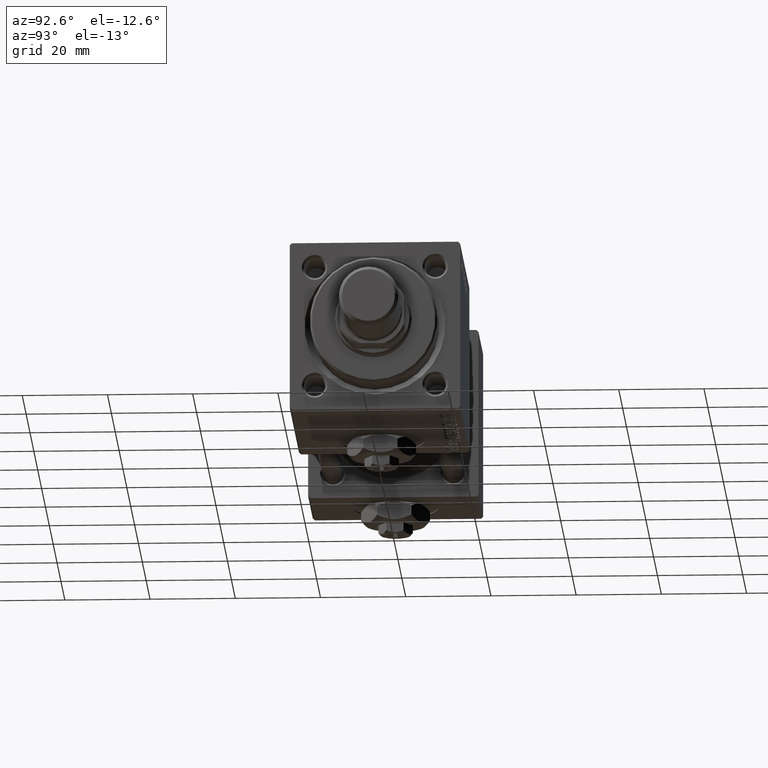
[diagram: clean part render]
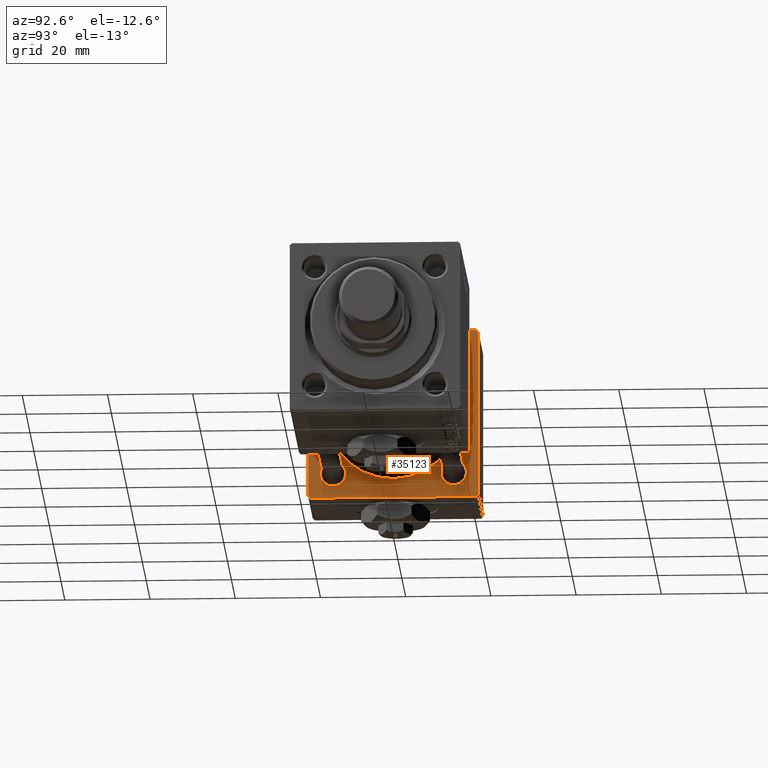
[diagram: same view with one face highlighted and labeled with its STEP entity id]
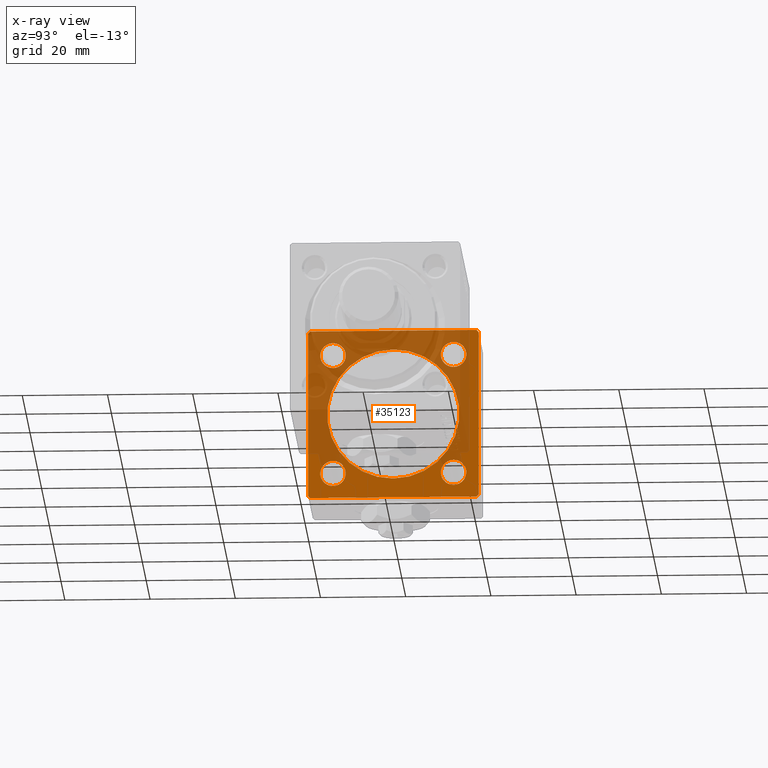
[diagram: x-ray of the same camera — body ghosted, the highlighted face saturated]
A machine part, auxiliary view. The second image highlights one B-rep face of the part: STEP entity #35123.
The next image is the same camera in x-ray: the body ghosted, the highlighted face saturated — about 59% of this face is hidden behind the body in this view.
In plain terms, the highlighted planar face has unit normal (-1, 0, 0).
Its self-contained STEP definition (entity closure, byte-faithful):
#519 = EDGE_LOOP ( 'NONE', ( #50277, #7195 ) ) ;
#689 = CARTESIAN_POINT ( 'NONE',  ( 24.00000000000000000, 14.14999999999999858, 14.15000000000000036 ) ) ;
#772 = DIRECTION ( 'NONE',  ( 1.000000000000000000, 0.000000000000000000, 0.000000000000000000 ) ) ;
#1364 = CARTESIAN_POINT ( 'NONE',  ( 24.00000000000000000, -19.49999999999999289, 19.99999999999998934 ) ) ;
#1445 = CIRCLE ( 'NONE', #26029, 15.50000000000000000 ) ;
#1548 = PLANE ( 'NONE',  #42310 ) ;
#1754 = CIRCLE ( 'NONE', #51806, 2.999999999999976463 ) ;
#2576 = ORIENTED_EDGE ( 'NONE', *, *, #25992, .T. ) ;
#2863 = CARTESIAN_POINT ( 'NONE',  ( 24.00000000000000000, -14.14999999999999503, 14.15000000000000391 ) ) ;
#3237 = DIRECTION ( 'NONE',  ( 0.000000000000000000, -0.7071067811865425767, 0.7071067811865525687 ) ) ;
#4406 = CARTESIAN_POINT ( 'NONE',  ( 24.00000000000000000, -14.14999999999999503, -17.15000000000000924 ) ) ;
#4440 = DIRECTION ( 'NONE',  ( 0.000000000000000000, 0.000000000000000000, 1.000000000000000000 ) ) ;
#4509 = VERTEX_POINT ( 'NONE', #25077 ) ;
#5015 = CARTESIAN_POINT ( 'NONE',  ( 24.00000000000000000, -2.602085213965210642E-15, 0.000000000000000000 ) ) ;
#5289 = LINE ( 'NONE', #50209, #7431 ) ;
#5543 = VERTEX_POINT ( 'NONE', #1364 ) ;
#5746 = VERTEX_POINT ( 'NONE', #7902 ) ;
#6007 = VECTOR ( 'NONE', #39699, 1000.000000000000000 ) ;
#6233 = LINE ( 'NONE', #43895, #13411 ) ;
#6424 = CARTESIAN_POINT ( 'NONE',  ( 24.00000000000000000, -20.00000000000000355, 19.49999999999998224 ) ) ;
#6595 = EDGE_CURVE ( 'NONE', #4509, #49563, #1445, .T. ) ;
#6747 = CARTESIAN_POINT ( 'NONE',  ( 24.00000000000000000, 20.00000000000000000, 20.00000000000000000 ) ) ;
#6937 = EDGE_CURVE ( 'NONE', #18093, #19736, #10837, .T. ) ;
#7195 = ORIENTED_EDGE ( 'NONE', *, *, #25250, .T. ) ;
#7304 = CARTESIAN_POINT ( 'NONE',  ( 24.00000000000000000, -14.14999999999999503, -14.15000000000000391 ) ) ;
#7431 = VECTOR ( 'NONE', #34505, 1000.000000000000000 ) ;
#7902 = CARTESIAN_POINT ( 'NONE',  ( 24.00000000000000000, -20.00000000000000000, -19.49999999999999645 ) ) ;
#8224 = DIRECTION ( 'NONE',  ( 0.000000000000000000, 0.000000000000000000, 1.000000000000000000 ) ) ;
#8547 = FACE_BOUND ( 'NONE', #519, .T. ) ;
#10007 = DIRECTION ( 'NONE',  ( 0.000000000000000000, 0.000000000000000000, 1.000000000000000000 ) ) ;
#10458 = AXIS2_PLACEMENT_3D ( 'NONE', #13281, #13812, #26026 ) ;
#10837 = CIRCLE ( 'NONE', #27787, 2.999999999999973355 ) ;
#10928 = AXIS2_PLACEMENT_3D ( 'NONE', #689, #33102, #19864 ) ;
#11384 = EDGE_CURVE ( 'NONE', #34409, #24999, #28892, .T. ) ;
#11541 = EDGE_CURVE ( 'NONE', #33818, #27386, #41505, .T. ) ;
#11620 = DIRECTION ( 'NONE',  ( 1.000000000000000000, 0.000000000000000000, 0.000000000000000000 ) ) ;
#11623 = AXIS2_PLACEMENT_3D ( 'NONE', #2863, #46725, #34741 ) ;
#11813 = ORIENTED_EDGE ( 'NONE', *, *, #6937, .T. ) ;
#11879 = CARTESIAN_POINT ( 'NONE',  ( 24.00000000000000000, -2.602085213965210642E-15, 0.000000000000000000 ) ) ;
#12721 = VERTEX_POINT ( 'NONE', #30601 ) ;
#12979 = CARTESIAN_POINT ( 'NONE',  ( 24.00000000000000000, 14.14999999999999858, -17.14999999999997726 ) ) ;
#13281 = CARTESIAN_POINT ( 'NONE',  ( 24.00000000000000000, -14.14999999999999503, -14.15000000000000391 ) ) ;
#13411 = VECTOR ( 'NONE', #3237, 999.9999999999998863 ) ;
#13772 = CARTESIAN_POINT ( 'NONE',  ( 24.00000000000000000, 0.000000000000000000, 0.000000000000000000 ) ) ;
#13812 = DIRECTION ( 'NONE',  ( -1.000000000000000000, -0.000000000000000000, -0.000000000000000000 ) ) ;
#14556 = VECTOR ( 'NONE', #25156, 1000.000000000000000 ) ;
#14669 = CARTESIAN_POINT ( 'NONE',  ( 24.00000000000000000, 14.14999999999999858, -14.15000000000000036 ) ) ;
#14990 = CARTESIAN_POINT ( 'NONE',  ( 24.00000000000000000, 19.50000000000000000, 20.00000000000000000 ) ) ;
#15279 = DIRECTION ( 'NONE',  ( -1.000000000000000000, -0.000000000000000000, -0.000000000000000000 ) ) ;
#15400 = CARTESIAN_POINT ( 'NONE',  ( 24.00000000000000000, -14.14999999999999503, -11.15000000000000036 ) ) ;
#15711 = DIRECTION ( 'NONE',  ( 0.000000000000000000, 0.000000000000000000, 1.000000000000000000 ) ) ;
#17249 = EDGE_CURVE ( 'NONE', #34409, #28014, #33549, .T. ) ;
#17638 = DIRECTION ( 'NONE',  ( -1.000000000000000000, -0.000000000000000000, -0.000000000000000000 ) ) ;
#18093 = VERTEX_POINT ( 'NONE', #27688 ) ;
#18665 = EDGE_CURVE ( 'NONE', #19306, #49758, #1754, .T. ) ;
#19188 = ORIENTED_EDGE ( 'NONE', *, *, #11541, .T. ) ;
#19306 = VERTEX_POINT ( 'NONE', #12979 ) ;
#19456 = EDGE_LOOP ( 'NONE', ( #29492, #19188 ) ) ;
#19736 = VERTEX_POINT ( 'NONE', #35478 ) ;
#19854 = DIRECTION ( 'NONE',  ( 0.000000000000000000, 0.000000000000000000, 1.000000000000000000 ) ) ;
#19864 = DIRECTION ( 'NONE',  ( 0.000000000000000000, 0.000000000000000000, 1.000000000000000000 ) ) ;
#20277 = CARTESIAN_POINT ( 'NONE',  ( 24.00000000000000000, -19.50000000000000711, -20.00000000000000000 ) ) ;
#20982 = VERTEX_POINT ( 'NONE', #27435 ) ;
#21052 = DIRECTION ( 'NONE',  ( 0.000000000000000000, 0.7071067811865401342, -0.7071067811865549002 ) ) ;
#21520 = CARTESIAN_POINT ( 'NONE',  ( 24.00000000000000000, -14.14999999999999503, 17.15000000000000924 ) ) ;
#22216 = CARTESIAN_POINT ( 'NONE',  ( 24.00000000000000000, -20.00000000000000355, 19.99999999999998934 ) ) ;
#22703 = CARTESIAN_POINT ( 'NONE',  ( 24.00000000000000000, 14.14999999999999858, -11.15000000000002700 ) ) ;
#22743 = CIRCLE ( 'NONE', #33778, 15.50000000000000000 ) ;
#22854 = EDGE_LOOP ( 'NONE', ( #40168, #31645, #45755, #52343, #29443, #2576, #47518, #31380 ) ) ;
#23510 = DIRECTION ( 'NONE',  ( 0.000000000000000000, 0.000000000000000000, 1.000000000000000000 ) ) ;
#24014 = CARTESIAN_POINT ( 'NONE',  ( 24.00000000000000000, 20.00000000000000000, -19.50000000000002132 ) ) ;
#24130 = DIRECTION ( 'NONE',  ( -0.000000000000000000, 0.7071067811865524577, 0.7071067811865426878 ) ) ;
#24638 = CARTESIAN_POINT ( 'NONE',  ( 24.00000000000000000, 14.14999999999999858, 14.15000000000000036 ) ) ;
#24999 = VERTEX_POINT ( 'NONE', #24014 ) ;
#25077 = CARTESIAN_POINT ( 'NONE',  ( 24.00000000000000000, -2.602085213965210642E-15, 15.50000000000000000 ) ) ;
#25156 = DIRECTION ( 'NONE',  ( 0.000000000000000000, 8.673617379884036705E-17, -1.000000000000000000 ) ) ;
#25250 = EDGE_CURVE ( 'NONE', #49758, #19306, #50313, .T. ) ;
#25641 = VERTEX_POINT ( 'NONE', #14990 ) ;
#25992 = EDGE_CURVE ( 'NONE', #5543, #12721, #27664, .T. ) ;
#26026 = DIRECTION ( 'NONE',  ( 0.000000000000000000, 0.000000000000000000, 1.000000000000000000 ) ) ;
#26029 = AXIS2_PLACEMENT_3D ( 'NONE', #5015, #772, #8224 ) ;
#26351 = VERTEX_POINT ( 'NONE', #15400 ) ;
#27386 = VERTEX_POINT ( 'NONE', #33438 ) ;
#27418 = EDGE_CURVE ( 'NONE', #27386, #33818, #51527, .T. ) ;
#27435 = CARTESIAN_POINT ( 'NONE',  ( 24.00000000000000000, 20.00000000000000000, 19.49999999999999289 ) ) ;
#27664 = LINE ( 'NONE', #6424, #51481 ) ;
#27688 = CARTESIAN_POINT ( 'NONE',  ( 24.00000000000000000, 14.14999999999999858, 17.14999999999997726 ) ) ;
#27787 = AXIS2_PLACEMENT_3D ( 'NONE', #24638, #45109, #4440 ) ;
#28014 = VERTEX_POINT ( 'NONE', #40715 ) ;
#28143 = DIRECTION ( 'NONE',  ( 0.000000000000000000, -1.000000000000000000, 1.734723475976807094E-16 ) ) ;
#28722 = FACE_BOUND ( 'NONE', #30971, .T. ) ;
#28892 = LINE ( 'NONE', #45382, #30423 ) ;
#29093 = EDGE_CURVE ( 'NONE', #20982, #24999, #5289, .T. ) ;
#29443 = ORIENTED_EDGE ( 'NONE', *, *, #44886, .T. ) ;
#29492 = ORIENTED_EDGE ( 'NONE', *, *, #27418, .T. ) ;
#30423 = VECTOR ( 'NONE', #24130, 1000.000000000000000 ) ;
#30458 = AXIS2_PLACEMENT_3D ( 'NONE', #45899, #41905, #10007 ) ;
#30601 = CARTESIAN_POINT ( 'NONE',  ( 24.00000000000000000, -20.00000000000000355, 19.49999999999998224 ) ) ;
#30971 = EDGE_LOOP ( 'NONE', ( #39126, #44142 ) ) ;
#31380 = ORIENTED_EDGE ( 'NONE', *, *, #45018, .T. ) ;
#31645 = ORIENTED_EDGE ( 'NONE', *, *, #11384, .T. ) ;
#32098 = ORIENTED_EDGE ( 'NONE', *, *, #6595, .F. ) ;
#32099 = ORIENTED_EDGE ( 'NONE', *, *, #34320, .T. ) ;
#33102 = DIRECTION ( 'NONE',  ( -1.000000000000000000, -0.000000000000000000, -0.000000000000000000 ) ) ;
#33369 = EDGE_CURVE ( 'NONE', #49563, #4509, #22743, .T. ) ;
#33438 = CARTESIAN_POINT ( 'NONE',  ( 24.00000000000000000, -14.14999999999999503, 11.15000000000000036 ) ) ;
#33549 = LINE ( 'NONE', #49766, #46684 ) ;
#33602 = EDGE_CURVE ( 'NONE', #20982, #25641, #6233, .T. ) ;
#33778 = AXIS2_PLACEMENT_3D ( 'NONE', #11879, #11620, #19854 ) ;
#33818 = VERTEX_POINT ( 'NONE', #21520 ) ;
#34224 = CIRCLE ( 'NONE', #10458, 3.000000000000004441 ) ;
#34320 = EDGE_CURVE ( 'NONE', #19736, #18093, #35516, .T. ) ;
#34409 = VERTEX_POINT ( 'NONE', #49582 ) ;
#34505 = DIRECTION ( 'NONE',  ( 0.000000000000000000, 0.000000000000000000, -1.000000000000000000 ) ) ;
#34741 = DIRECTION ( 'NONE',  ( 0.000000000000000000, 0.000000000000000000, 1.000000000000000000 ) ) ;
#35123 = ADVANCED_FACE ( 'NONE', ( #28722, #8547, #36972, #40960, #49196, #37949 ), #1548, .F. ) ;
#35478 = CARTESIAN_POINT ( 'NONE',  ( 24.00000000000000000, 14.14999999999999858, 11.15000000000002700 ) ) ;
#35516 = CIRCLE ( 'NONE', #10928, 2.999999999999973355 ) ;
#36637 = VECTOR ( 'NONE', #21052, 1000.000000000000000 ) ;
#36879 = EDGE_CURVE ( 'NONE', #49475, #26351, #44083, .T. ) ;
#36972 = FACE_BOUND ( 'NONE', #19456, .T. ) ;
#37838 = EDGE_LOOP ( 'NONE', ( #32098, #38754 ) ) ;
#37949 = FACE_OUTER_BOUND ( 'NONE', #22854, .T. ) ;
#38754 = ORIENTED_EDGE ( 'NONE', *, *, #33369, .F. ) ;
#38856 = DIRECTION ( 'NONE',  ( -0.000000000000000000, -0.7071067811865500152, -0.7071067811865451302 ) ) ;
#39032 = EDGE_LOOP ( 'NONE', ( #32099, #11813 ) ) ;
#39126 = ORIENTED_EDGE ( 'NONE', *, *, #36879, .T. ) ;
#39699 = DIRECTION ( 'NONE',  ( 0.000000000000000000, -1.000000000000000000, -2.602085213965210149E-16 ) ) ;
#40063 = DIRECTION ( 'NONE',  ( -0.000000000000000000, 0.000000000000000000, 1.000000000000000000 ) ) ;
#40168 = ORIENTED_EDGE ( 'NONE', *, *, #17249, .F. ) ;
#40715 = CARTESIAN_POINT ( 'NONE',  ( 24.00000000000000000, -19.50000000000000711, -20.00000000000000000 ) ) ;
#40960 = FACE_BOUND ( 'NONE', #39032, .T. ) ;
#41248 = LINE ( 'NONE', #20277, #36637 ) ;
#41505 = CIRCLE ( 'NONE', #30458, 3.000000000000004441 ) ;
#41785 = EDGE_CURVE ( 'NONE', #12721, #5746, #46410, .T. ) ;
#41905 = DIRECTION ( 'NONE',  ( -1.000000000000000000, -0.000000000000000000, -0.000000000000000000 ) ) ;
#42310 = AXIS2_PLACEMENT_3D ( 'NONE', #13772, #50181, #40063 ) ;
#42340 = DIRECTION ( 'NONE',  ( 0.000000000000000000, 0.000000000000000000, 1.000000000000000000 ) ) ;
#43895 = CARTESIAN_POINT ( 'NONE',  ( 24.00000000000000000, 19.50000000000000000, 20.00000000000000000 ) ) ;
#44083 = CIRCLE ( 'NONE', #52578, 3.000000000000004441 ) ;
#44142 = ORIENTED_EDGE ( 'NONE', *, *, #49028, .T. ) ;
#44886 = EDGE_CURVE ( 'NONE', #25641, #5543, #47152, .T. ) ;
#45018 = EDGE_CURVE ( 'NONE', #5746, #28014, #41248, .T. ) ;
#45109 = DIRECTION ( 'NONE',  ( -1.000000000000000000, -0.000000000000000000, -0.000000000000000000 ) ) ;
#45382 = CARTESIAN_POINT ( 'NONE',  ( 24.00000000000000000, 20.00000000000000000, -19.50000000000002132 ) ) ;
#45583 = CARTESIAN_POINT ( 'NONE',  ( 24.00000000000000000, -7.038826752868131828E-16, -15.50000000000000000 ) ) ;
#45755 = ORIENTED_EDGE ( 'NONE', *, *, #29093, .F. ) ;
#45899 = CARTESIAN_POINT ( 'NONE',  ( 24.00000000000000000, -14.14999999999999503, 14.15000000000000391 ) ) ;
#46222 = AXIS2_PLACEMENT_3D ( 'NONE', #14669, #52127, #15711 ) ;
#46410 = LINE ( 'NONE', #22216, #14556 ) ;
#46684 = VECTOR ( 'NONE', #28143, 1000.000000000000000 ) ;
#46725 = DIRECTION ( 'NONE',  ( -1.000000000000000000, -0.000000000000000000, -0.000000000000000000 ) ) ;
#47152 = LINE ( 'NONE', #6747, #6007 ) ;
#47518 = ORIENTED_EDGE ( 'NONE', *, *, #41785, .T. ) ;
#49028 = EDGE_CURVE ( 'NONE', #26351, #49475, #34224, .T. ) ;
#49196 = FACE_BOUND ( 'NONE', #37838, .T. ) ;
#49475 = VERTEX_POINT ( 'NONE', #4406 ) ;
#49563 = VERTEX_POINT ( 'NONE', #45583 ) ;
#49582 = CARTESIAN_POINT ( 'NONE',  ( 24.00000000000000000, 19.50000000000000711, -20.00000000000000711 ) ) ;
#49758 = VERTEX_POINT ( 'NONE', #22703 ) ;
#49766 = CARTESIAN_POINT ( 'NONE',  ( 24.00000000000000000, 20.00000000000000000, -20.00000000000000711 ) ) ;
#50181 = DIRECTION ( 'NONE',  ( -1.000000000000000000, 0.000000000000000000, -0.000000000000000000 ) ) ;
#50209 = CARTESIAN_POINT ( 'NONE',  ( 24.00000000000000000, 20.00000000000000000, 20.00000000000000000 ) ) ;
#50277 = ORIENTED_EDGE ( 'NONE', *, *, #18665, .T. ) ;
#50313 = CIRCLE ( 'NONE', #46222, 2.999999999999976463 ) ;
#50581 = CARTESIAN_POINT ( 'NONE',  ( 24.00000000000000000, 14.14999999999999858, -14.15000000000000036 ) ) ;
#51481 = VECTOR ( 'NONE', #38856, 1000.000000000000114 ) ;
#51527 = CIRCLE ( 'NONE', #11623, 3.000000000000004441 ) ;
#51806 = AXIS2_PLACEMENT_3D ( 'NONE', #50581, #17638, #42340 ) ;
#52127 = DIRECTION ( 'NONE',  ( -1.000000000000000000, -0.000000000000000000, -0.000000000000000000 ) ) ;
#52343 = ORIENTED_EDGE ( 'NONE', *, *, #33602, .T. ) ;
#52578 = AXIS2_PLACEMENT_3D ( 'NONE', #7304, #15279, #23510 ) ;